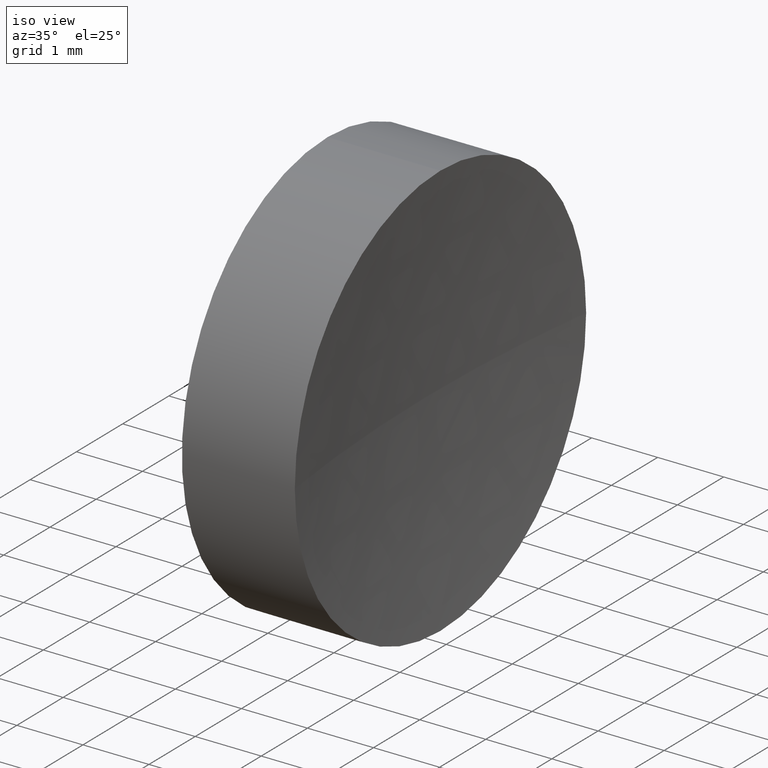
[diagram: clean part render]
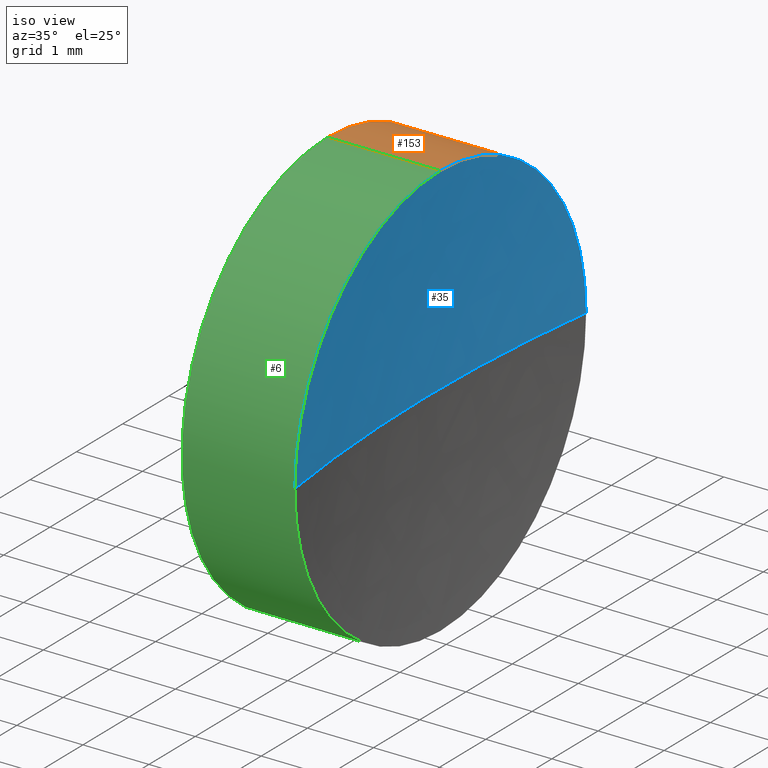
[diagram: same view with three faces highlighted in distinct colors, each labeled with its STEP entity id]
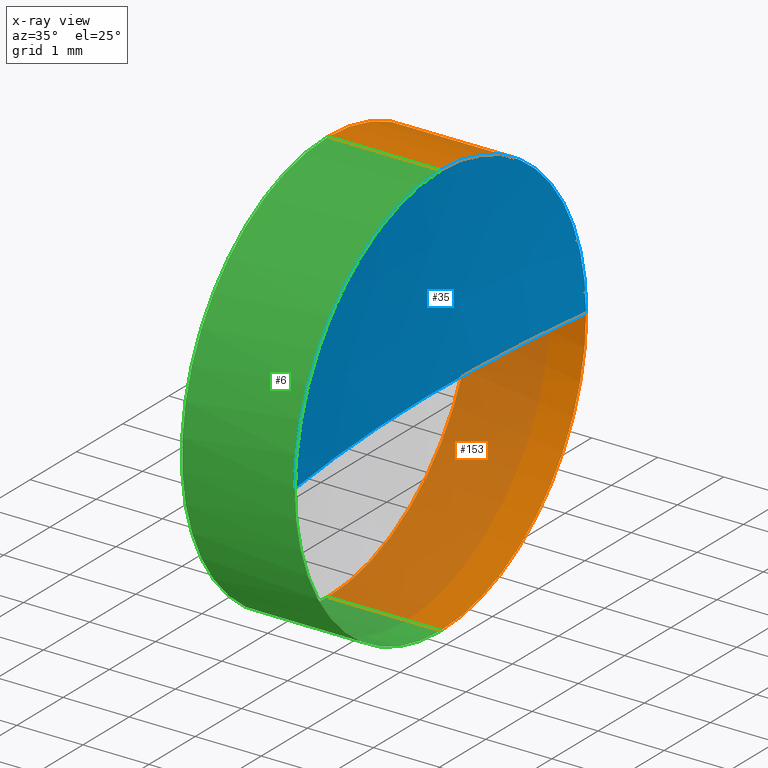
[diagram: x-ray of the same camera — body ghosted, the three highlighted faces saturated]
A machine part, iso view with three faces highlighted in distinct colors.
The next image is the same camera in x-ray (body ghosted, the three faces saturated) — at least one of them is partly hidden behind the body in this view.
Their STEP definitions:

[orange] entity #153 — the highlighted cylindrical surface (partial cylindrical patch) has radius 3.15 mm, axis along (-1, -0, -0).
#1 = DIRECTION ( 'NONE',  ( -1.000000000000000000, -0.0000000000000000000, -0.0000000000000000000 ) ) ;
#9 = ORIENTED_EDGE ( 'NONE', *, *, #141, .T. ) ;
#15 = CARTESIAN_POINT ( 'NONE',  ( 23.88218947520227800, 13.04452057459747900, 0.0000000000000000000 ) ) ;
#18 = AXIS2_PLACEMENT_3D ( 'NONE', #50, #75, #87 ) ;
#20 = EDGE_CURVE ( 'NONE', #152, #137, #70, .T. ) ;
#24 = EDGE_CURVE ( 'NONE', #46, #137, #118, .T. ) ;
#28 = EDGE_CURVE ( 'NONE', #102, #48, #85, .T. ) ;
#41 = AXIS2_PLACEMENT_3D ( 'NONE', #15, #1, #110 ) ;
#42 = DIRECTION ( 'NONE',  ( 0.0000000000000000000, 0.0000000000000000000, 1.000000000000000000 ) ) ;
#44 = CARTESIAN_POINT ( 'NONE',  ( 23.88218947520227800, 13.04452057459747900, 3.150000000000001700 ) ) ;
#46 = VERTEX_POINT ( 'NONE', #88 ) ;
#48 = VERTEX_POINT ( 'NONE', #144 ) ;
#50 = CARTESIAN_POINT ( 'NONE',  ( 21.22493055706841100, 13.04452057459747900, 0.0000000000000000000 ) ) ;
#61 = ORIENTED_EDGE ( 'NONE', *, *, #98, .F. ) ;
#65 = CARTESIAN_POINT ( 'NONE',  ( 22.17218947520228100, 13.04452057459747900, 3.150000000000001700 ) ) ;
#67 = CARTESIAN_POINT ( 'NONE',  ( 23.88218947520227800, 13.04452057459747900, 0.0000000000000000000 ) ) ;
#70 = CIRCLE ( 'NONE', #156, 3.150000000000001700 ) ;
#75 = DIRECTION ( 'NONE',  ( -1.000000000000000000, -0.0000000000000000000, -0.0000000000000000000 ) ) ;
#77 = CIRCLE ( 'NONE', #41, 3.150000000000001700 ) ;
#80 = DIRECTION ( 'NONE',  ( -1.000000000000000000, -0.0000000000000000000, -0.0000000000000000000 ) ) ;
#85 = CIRCLE ( 'NONE', #109, 3.150000000000001700 ) ;
#87 = DIRECTION ( 'NONE',  ( 0.0000000000000000000, 0.0000000000000000000, 1.000000000000000000 ) ) ;
#88 = CARTESIAN_POINT ( 'NONE',  ( 23.88218947520227800, 13.04452057459747900, -3.150000000000001700 ) ) ;
#92 = VECTOR ( 'NONE', #154, 1000.000000000000000 ) ;
#97 = EDGE_LOOP ( 'NONE', ( #9, #166, #149, #61, #181 ) ) ;
#98 = EDGE_CURVE ( 'NONE', #102, #152, #146, .T. ) ;
#102 = VERTEX_POINT ( 'NONE', #44 ) ;
#109 = AXIS2_PLACEMENT_3D ( 'NONE', #67, #80, #111 ) ;
#110 = DIRECTION ( 'NONE',  ( 0.0000000000000000000, 0.0000000000000000000, 1.000000000000000000 ) ) ;
#111 = DIRECTION ( 'NONE',  ( 0.0000000000000000000, 0.0000000000000000000, 1.000000000000000000 ) ) ;
#118 = LINE ( 'NONE', #172, #92 ) ;
#121 = CARTESIAN_POINT ( 'NONE',  ( 21.22493055706841100, 13.04452057459747900, 3.150000000000001700 ) ) ;
#125 = CARTESIAN_POINT ( 'NONE',  ( 22.17218947520228100, 13.04452057459747900, 0.0000000000000000000 ) ) ;
#132 = VECTOR ( 'NONE', #173, 1000.000000000000000 ) ;
#137 = VERTEX_POINT ( 'NONE', #184 ) ;
#141 = EDGE_CURVE ( 'NONE', #48, #46, #77, .T. ) ;
#144 = CARTESIAN_POINT ( 'NONE',  ( 23.88218947520227800, 16.19452057459747600, 0.0000000000000000000 ) ) ;
#146 = LINE ( 'NONE', #121, #132 ) ;
#149 = ORIENTED_EDGE ( 'NONE', *, *, #20, .F. ) ;
#152 = VERTEX_POINT ( 'NONE', #65 ) ;
#153 = ADVANCED_FACE ( 'NONE', ( #179 ), #162, .T. ) ;
#154 = DIRECTION ( 'NONE',  ( -1.000000000000000000, -0.0000000000000000000, -0.0000000000000000000 ) ) ;
#156 = AXIS2_PLACEMENT_3D ( 'NONE', #125, #158, #42 ) ;
#158 = DIRECTION ( 'NONE',  ( -1.000000000000000000, -0.0000000000000000000, -0.0000000000000000000 ) ) ;
#162 = CYLINDRICAL_SURFACE ( 'NONE', #18, 3.150000000000001700 ) ;
#166 = ORIENTED_EDGE ( 'NONE', *, *, #24, .T. ) ;
#172 = CARTESIAN_POINT ( 'NONE',  ( 21.22493055706841100, 13.04452057459747900, -3.150000000000001700 ) ) ;
#173 = DIRECTION ( 'NONE',  ( -1.000000000000000000, -0.0000000000000000000, -0.0000000000000000000 ) ) ;
#179 = FACE_OUTER_BOUND ( 'NONE', #97, .T. ) ;
#181 = ORIENTED_EDGE ( 'NONE', *, *, #28, .T. ) ;
#184 = CARTESIAN_POINT ( 'NONE',  ( 22.17218947520228100, 13.04452057459747900, -3.150000000000001700 ) ) ;

[blue] entity #35 — the highlighted spherical surface has radius 23.7328 mm.
#14 = CARTESIAN_POINT ( 'NONE',  ( 47.40501261472310500, 13.04452057459747700, 0.0000000000000000000 ) ) ;
#27 = DIRECTION ( 'NONE',  ( 0.0000000000000000000, 0.0000000000000000000, 1.000000000000000000 ) ) ;
#28 = EDGE_CURVE ( 'NONE', #102, #48, #85, .T. ) ;
#30 = DIRECTION ( 'NONE',  ( 0.0000000000000000000, 1.000000000000000000, 0.0000000000000000000 ) ) ;
#31 = DIRECTION ( 'NONE',  ( 0.0000000000000000000, 0.0000000000000000000, 1.000000000000000000 ) ) ;
#35 = ADVANCED_FACE ( 'NONE', ( #163 ), #99, .F. ) ;
#44 = CARTESIAN_POINT ( 'NONE',  ( 23.88218947520227800, 13.04452057459747900, 3.150000000000001700 ) ) ;
#47 = EDGE_CURVE ( 'NONE', #135, #102, #59, .T. ) ;
#48 = VERTEX_POINT ( 'NONE', #144 ) ;
#52 = DIRECTION ( 'NONE',  ( 0.0000000000000000000, 1.000000000000000000, 1.224646799147353200E-016 ) ) ;
#53 = CARTESIAN_POINT ( 'NONE',  ( 47.40501261472310500, 13.04452057459747700, 0.0000000000000000000 ) ) ;
#59 = CIRCLE ( 'NONE', #60, 3.150000000000001700 ) ;
#60 = AXIS2_PLACEMENT_3D ( 'NONE', #69, #112, #31 ) ;
#64 = ORIENTED_EDGE ( 'NONE', *, *, #28, .F. ) ;
#67 = CARTESIAN_POINT ( 'NONE',  ( 23.88218947520227800, 13.04452057459747900, 0.0000000000000000000 ) ) ;
#69 = CARTESIAN_POINT ( 'NONE',  ( 23.88218947520227800, 13.04452057459747900, 0.0000000000000000000 ) ) ;
#71 = ORIENTED_EDGE ( 'NONE', *, *, #114, .T. ) ;
#74 = DIRECTION ( 'NONE',  ( 0.0000000000000000000, 1.224646799147353200E-016, -1.000000000000000000 ) ) ;
#80 = DIRECTION ( 'NONE',  ( -1.000000000000000000, -0.0000000000000000000, -0.0000000000000000000 ) ) ;
#83 = EDGE_CURVE ( 'NONE', #48, #148, #174, .T. ) ;
#85 = CIRCLE ( 'NONE', #109, 3.150000000000001700 ) ;
#96 = ORIENTED_EDGE ( 'NONE', *, *, #83, .F. ) ;
#99 = SPHERICAL_SURFACE ( 'NONE', #147, 23.73279815894401100 ) ;
#102 = VERTEX_POINT ( 'NONE', #44 ) ;
#104 = CARTESIAN_POINT ( 'NONE',  ( 23.88218947520227800, 9.894520574597480700, -3.857637417314157300E-016 ) ) ;
#106 = DIRECTION ( 'NONE',  ( 1.000000000000000000, 0.0000000000000000000, 0.0000000000000000000 ) ) ;
#107 = ORIENTED_EDGE ( 'NONE', *, *, #47, .F. ) ;
#109 = AXIS2_PLACEMENT_3D ( 'NONE', #67, #80, #111 ) ;
#111 = DIRECTION ( 'NONE',  ( 0.0000000000000000000, 0.0000000000000000000, 1.000000000000000000 ) ) ;
#112 = DIRECTION ( 'NONE',  ( -1.000000000000000000, -0.0000000000000000000, -0.0000000000000000000 ) ) ;
#114 = EDGE_CURVE ( 'NONE', #135, #148, #127, .T. ) ;
#116 = AXIS2_PLACEMENT_3D ( 'NONE', #157, #74, #52 ) ;
#123 = CARTESIAN_POINT ( 'NONE',  ( 23.67221445577909100, 13.04452057459747900, 0.0000000000000000000 ) ) ;
#127 = CIRCLE ( 'NONE', #116, 23.73279815894401100 ) ;
#135 = VERTEX_POINT ( 'NONE', #104 ) ;
#140 = DIRECTION ( 'NONE',  ( 0.0000000000000000000, 0.0000000000000000000, -1.000000000000000000 ) ) ;
#144 = CARTESIAN_POINT ( 'NONE',  ( 23.88218947520227800, 16.19452057459747600, 0.0000000000000000000 ) ) ;
#147 = AXIS2_PLACEMENT_3D ( 'NONE', #14, #140, #30 ) ;
#148 = VERTEX_POINT ( 'NONE', #123 ) ;
#157 = CARTESIAN_POINT ( 'NONE',  ( 47.40501261472310500, 13.04452057459747700, 0.0000000000000000000 ) ) ;
#161 = EDGE_LOOP ( 'NONE', ( #107, #71, #96, #64 ) ) ;
#163 = FACE_OUTER_BOUND ( 'NONE', #161, .T. ) ;
#174 = CIRCLE ( 'NONE', #178, 23.73279815894401100 ) ;
#178 = AXIS2_PLACEMENT_3D ( 'NONE', #53, #27, #106 ) ;

[green] entity #6 — the highlighted cylindrical surface (partial cylindrical patch) has radius 3.15 mm, axis along (-1, -0, -0).
#2 = CIRCLE ( 'NONE', #165, 3.150000000000001700 ) ;
#6 = ADVANCED_FACE ( 'NONE', ( #73 ), #180, .T. ) ;
#16 = CARTESIAN_POINT ( 'NONE',  ( 23.88218947520227800, 13.04452057459747900, 0.0000000000000000000 ) ) ;
#24 = EDGE_CURVE ( 'NONE', #46, #137, #118, .T. ) ;
#31 = DIRECTION ( 'NONE',  ( 0.0000000000000000000, 0.0000000000000000000, 1.000000000000000000 ) ) ;
#32 = DIRECTION ( 'NONE',  ( -1.000000000000000000, -0.0000000000000000000, -0.0000000000000000000 ) ) ;
#34 = ORIENTED_EDGE ( 'NONE', *, *, #24, .F. ) ;
#37 = EDGE_CURVE ( 'NONE', #46, #135, #128, .T. ) ;
#38 = DIRECTION ( 'NONE',  ( 0.0000000000000000000, 0.0000000000000000000, 1.000000000000000000 ) ) ;
#44 = CARTESIAN_POINT ( 'NONE',  ( 23.88218947520227800, 13.04452057459747900, 3.150000000000001700 ) ) ;
#46 = VERTEX_POINT ( 'NONE', #88 ) ;
#47 = EDGE_CURVE ( 'NONE', #135, #102, #59, .T. ) ;
#56 = EDGE_LOOP ( 'NONE', ( #34, #81, #143, #183, #134 ) ) ;
#59 = CIRCLE ( 'NONE', #60, 3.150000000000001700 ) ;
#60 = AXIS2_PLACEMENT_3D ( 'NONE', #69, #112, #31 ) ;
#65 = CARTESIAN_POINT ( 'NONE',  ( 22.17218947520228100, 13.04452057459747900, 3.150000000000001700 ) ) ;
#68 = CARTESIAN_POINT ( 'NONE',  ( 22.17218947520228100, 13.04452057459747900, 0.0000000000000000000 ) ) ;
#69 = CARTESIAN_POINT ( 'NONE',  ( 23.88218947520227800, 13.04452057459747900, 0.0000000000000000000 ) ) ;
#72 = EDGE_CURVE ( 'NONE', #137, #152, #2, .T. ) ;
#73 = FACE_OUTER_BOUND ( 'NONE', #56, .T. ) ;
#76 = DIRECTION ( 'NONE',  ( -1.000000000000000000, -0.0000000000000000000, -0.0000000000000000000 ) ) ;
#81 = ORIENTED_EDGE ( 'NONE', *, *, #37, .T. ) ;
#82 = DIRECTION ( 'NONE',  ( 0.0000000000000000000, 0.0000000000000000000, 1.000000000000000000 ) ) ;
#88 = CARTESIAN_POINT ( 'NONE',  ( 23.88218947520227800, 13.04452057459747900, -3.150000000000001700 ) ) ;
#92 = VECTOR ( 'NONE', #154, 1000.000000000000000 ) ;
#94 = AXIS2_PLACEMENT_3D ( 'NONE', #16, #32, #82 ) ;
#98 = EDGE_CURVE ( 'NONE', #102, #152, #146, .T. ) ;
#102 = VERTEX_POINT ( 'NONE', #44 ) ;
#104 = CARTESIAN_POINT ( 'NONE',  ( 23.88218947520227800, 9.894520574597480700, -3.857637417314157300E-016 ) ) ;
#105 = DIRECTION ( 'NONE',  ( 0.0000000000000000000, 0.0000000000000000000, 1.000000000000000000 ) ) ;
#112 = DIRECTION ( 'NONE',  ( -1.000000000000000000, -0.0000000000000000000, -0.0000000000000000000 ) ) ;
#118 = LINE ( 'NONE', #172, #92 ) ;
#121 = CARTESIAN_POINT ( 'NONE',  ( 21.22493055706841100, 13.04452057459747900, 3.150000000000001700 ) ) ;
#128 = CIRCLE ( 'NONE', #94, 3.150000000000001700 ) ;
#132 = VECTOR ( 'NONE', #173, 1000.000000000000000 ) ;
#134 = ORIENTED_EDGE ( 'NONE', *, *, #72, .F. ) ;
#135 = VERTEX_POINT ( 'NONE', #104 ) ;
#137 = VERTEX_POINT ( 'NONE', #184 ) ;
#143 = ORIENTED_EDGE ( 'NONE', *, *, #47, .T. ) ;
#146 = LINE ( 'NONE', #121, #132 ) ;
#152 = VERTEX_POINT ( 'NONE', #65 ) ;
#154 = DIRECTION ( 'NONE',  ( -1.000000000000000000, -0.0000000000000000000, -0.0000000000000000000 ) ) ;
#165 = AXIS2_PLACEMENT_3D ( 'NONE', #68, #186, #38 ) ;
#169 = CARTESIAN_POINT ( 'NONE',  ( 21.22493055706841100, 13.04452057459747900, 0.0000000000000000000 ) ) ;
#172 = CARTESIAN_POINT ( 'NONE',  ( 21.22493055706841100, 13.04452057459747900, -3.150000000000001700 ) ) ;
#173 = DIRECTION ( 'NONE',  ( -1.000000000000000000, -0.0000000000000000000, -0.0000000000000000000 ) ) ;
#180 = CYLINDRICAL_SURFACE ( 'NONE', #182, 3.150000000000001700 ) ;
#182 = AXIS2_PLACEMENT_3D ( 'NONE', #169, #76, #105 ) ;
#183 = ORIENTED_EDGE ( 'NONE', *, *, #98, .T. ) ;
#184 = CARTESIAN_POINT ( 'NONE',  ( 22.17218947520228100, 13.04452057459747900, -3.150000000000001700 ) ) ;
#186 = DIRECTION ( 'NONE',  ( -1.000000000000000000, -0.0000000000000000000, -0.0000000000000000000 ) ) ;